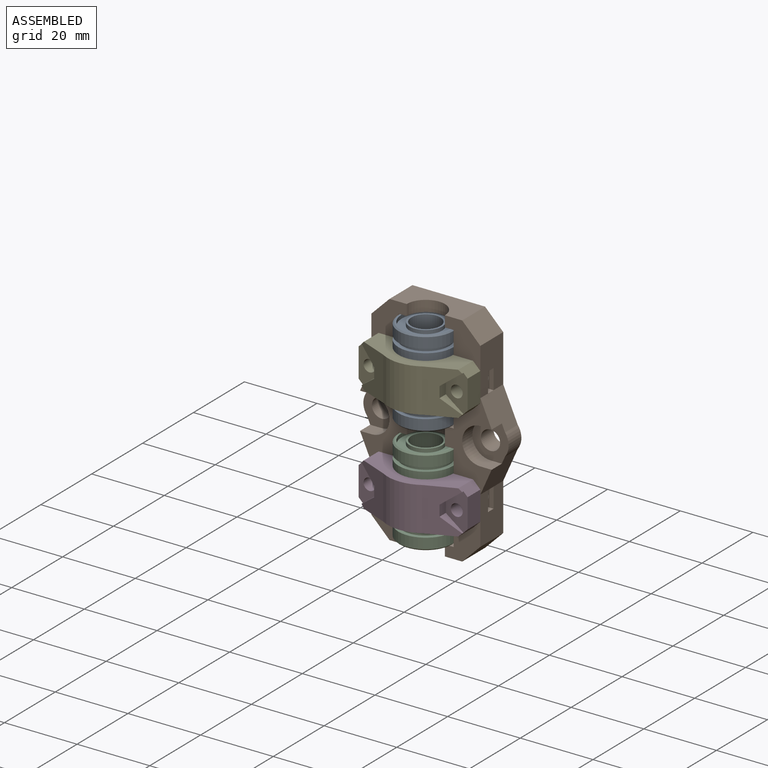
[diagram: assembled view]
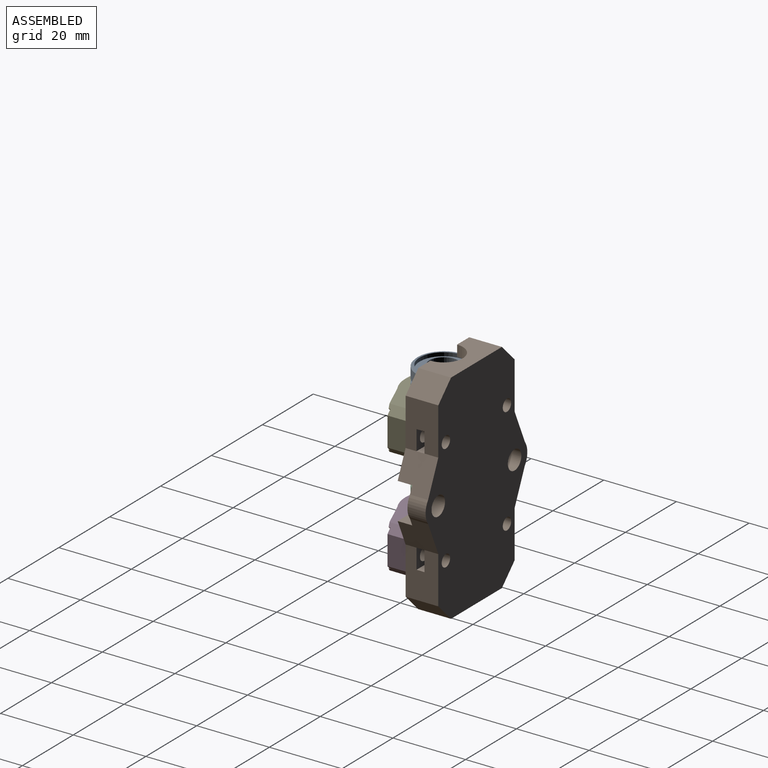
[diagram: assembled view, second angle]
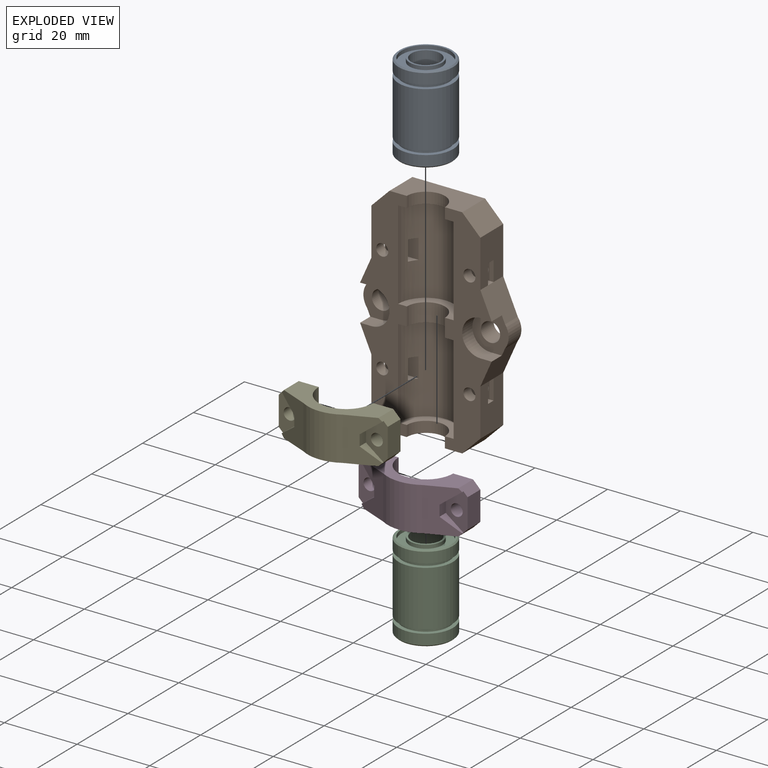
[diagram: exploded view]
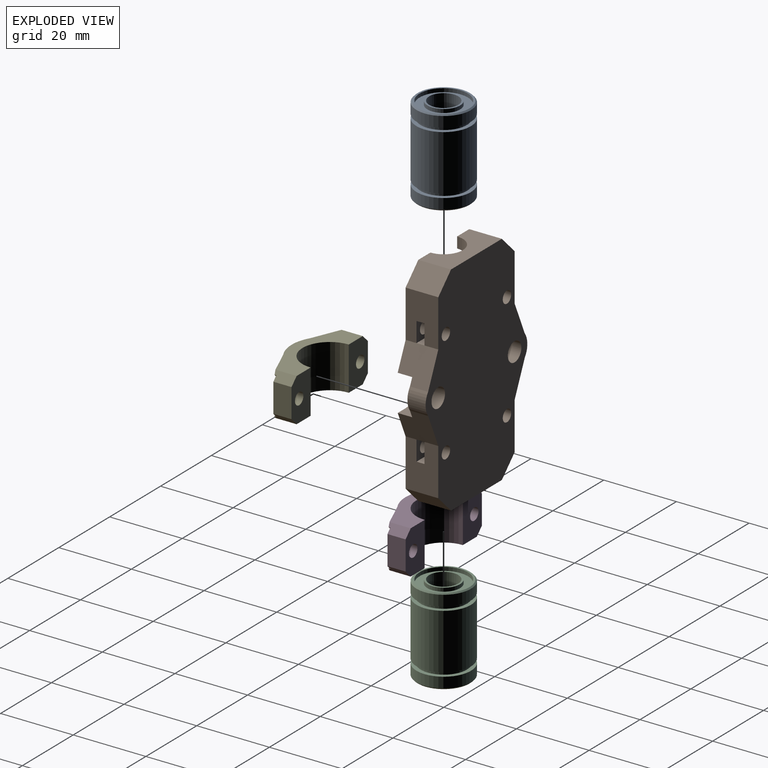
[diagram: exploded view, second angle]
ASSEMBLY  parts=5 mates=4
PART A: 22 faces, bbox 24x15x15 mm
  f0: cone r=7.5mm half-angle=45deg, axis (-1,0,0), area 22.8mm2, adj f1,f21
  f1: cylinder r=7.5mm len=15mm, axis (-1,0,0), area 136.7mm2, adj f0,f2
  f2: plane 15x15mm, normal (-1,0,0), area 48mm2, adj f1,f3
  f3: cylinder r=6.4mm len=12.8mm, axis (-1,0,0), area 44.2mm2, adj f2,f4
  f4: plane 15x15mm, normal (1,0,0), area 48mm2, adj f3,f5
  f5: cylinder r=7.5mm len=15.3mm, axis (-1,0,0), area 721mm2, adj f4,f6
  f6: plane 15x15mm, normal (-1,0,0), area 48mm2, adj f5,f7
  f7: cylinder r=6.4mm len=12.8mm, axis (-1,0,0), area 44.2mm2, adj f6,f8
  f8: plane 15x15mm, normal (1,0,0), area 48mm2, adj f7,f9
  f9: cylinder r=7.5mm len=15mm, axis (-1,0,0), area 136.7mm2, adj f8,f10
  f10: cone r=7.5mm half-angle=45deg, axis (1,0,0), area 22.8mm2, adj f9,f11
  f11: plane 14.3x14.3mm, normal (-1,0,0), area 21.7mm2, adj f10,f12
  f12: cylinder r=6.65mm len=13.3mm, axis (-1,0,0), area 41.8mm2, adj f11,f13
  f13: plane 13.3x13.3mm, normal (-1,0,0), area 75.3mm2, adj f12,f14
  f14: cylinder r=4.5mm len=9mm, axis (-1,0,0), area 28.3mm2, adj f13,f15
  f15: plane 9x9mm, normal (-1,0,0), area 13.4mm2, adj f14,f16
  f16: cylinder r=4mm len=24mm, axis (-1,0,0), area 603.2mm2, adj f15,f17
  f17: plane 9x9mm, normal (1,0,0), area 13.4mm2, adj f16,f18
  f18: cylinder r=4.5mm len=9mm, axis (-1,0,0), area 28.3mm2, adj f17,f19
  f19: plane 13.3x13.3mm, normal (1,0,0), area 75.3mm2, adj f18,f20
  f20: cylinder r=6.65mm len=13.3mm, axis (-1,0,0), area 41.8mm2, adj f19,f21
  f21: plane 14.3x14.3mm, normal (1,0,0), area 21.7mm2, adj f0,f20
PART B: 62 faces, bbox 40x9x60 mm
  f0: cylinder r=7.65mm len=24.5mm, axis (0,0,1), area 559.8mm2, adj f9,f18,f19,f38,f50,f51,f52,f53
  f1: cylinder r=1.65mm len=3.8mm, axis (0,-1,0), area 39.4mm2, adj f5,f59
  f2: cylinder r=1.65mm len=3.8mm, axis (0,-1,0), area 39.4mm2, adj f5,f55
  f3: cylinder r=1.65mm len=3.3mm, axis (0,-1,0), area 31.1mm2, adj f9,f51
  f4: cylinder r=1.65mm len=3.3mm, axis (0,-1,0), area 31.1mm2, adj f9,f47
  f5: plane 60x40mm, normal (0,1,0), area 1799.8mm2, adj f1,f2,f21,f22,f23,f24,f25,f26
  f6: cylinder r=5mm len=10mm, axis (0,-1,0), area 62.8mm2, adj f7,f8,f9,f10
  f7: plane 4x3.11mm, normal (0,0,-1), area 12.4mm2, adj f6,f9,f10,f21
  f8: plane 4x3.11mm, normal (0,0,1), area 12.4mm2, adj f6,f9,f10,f27
  f9: plane 60x12.86mm, normal (0,-1,0), area 407.8mm2, adj f0,f3,f4,f6,f7,f8,f13,f14
  f10: plane 10x10mm, normal (0,-1,0), area 59.5mm2, adj f6,f7,f8,f21,f27,f28,f32
  f11: cylinder r=5mm len=10mm, axis (0,-1,0), area 62.8mm2, adj f12,f36,f37,f38
  f12: plane 4x3.11mm, normal (0,0,1), area 12.4mm2, adj f11,f35,f36,f38
  f13: cylinder r=5.25mm len=10.5mm, axis (0,0,1), area 49.5mm2, adj f9,f14,f25,f38
  f14: plane 15.3x7.65mm, normal (0,0,1), area 48.6mm2, adj f9,f13,f15,f38
  f15: cylinder r=7.65mm len=24.5mm, axis (0,0,1), area 559.8mm2, adj f9,f14,f16,f38,f46,f47,f48,f49
  f16: plane 15.3x7.65mm, normal (0,0,-1), area 48.6mm2, adj f9,f15,f17,f38
  f17: cylinder r=5.25mm len=10.5mm, axis (0,0,1), area 82.5mm2, adj f9,f16,f18,f38
  f18: plane 15.3x7.65mm, normal (0,0,1), area 48.6mm2, adj f0,f9,f17,f38
  f19: plane 15.3x7.65mm, normal (0,0,-1), area 48.6mm2, adj f0,f9,f20,f38
  f20: cylinder r=5.25mm len=10.5mm, axis (0,0,1), area 49.5mm2, adj f9,f19,f23,f38
  f21: plane 9x9mm, normal (0.91,0,0.41), area 79.9mm2, adj f5,f7,f9,f10,f22,f28,f52
  f22: plane 13x9mm, normal (1,0,0), area 104.9mm2, adj f5,f9,f21,f44,f50,f51,f53
  f23: plane 20x9mm, normal (0,0,1), area 136.7mm2, adj f5,f9,f20,f38,f44,f45
  f24: plane 13x9mm, normal (-1,0,0), area 104.9mm2, adj f5,f35,f38,f43,f58,f59,f60
  f25: plane 20x9mm, normal (0,0,-1), area 136.7mm2, adj f5,f9,f13,f38,f42,f43
  f26: plane 13x9mm, normal (1,0,0), area 104.9mm2, adj f5,f9,f27,f42,f46,f47,f48
  f27: plane 9x9mm, normal (0.91,0,-0.41), area 79.9mm2, adj f5,f8,f9,f10,f26,f28,f49
  f28: cylinder r=5mm len=6mm, axis (0,-1,0), area 32.2mm2, adj f5,f10,f21,f27
  f29: cylinder r=1.65mm len=3.8mm, axis (0,-1,0), area 39.4mm2, adj f5,f50
  f30: cylinder r=1.65mm len=3.8mm, axis (0,-1,0), area 39.4mm2, adj f5,f46
  f31: cylinder r=1.65mm len=3.3mm, axis (0,-1,0), area 31.1mm2, adj f38,f58
  f32: cylinder r=2.65mm len=5.3mm, axis (0,-1,0), area 83.3mm2, adj f5,f10
  f33: cylinder r=1.65mm len=3.3mm, axis (0,-1,0), area 31.1mm2, adj f38,f56
  f34: cylinder r=2.65mm len=5.3mm, axis (0,-1,0), area 83.3mm2, adj f5,f36
  f35: plane 9x9mm, normal (-0.91,0,-0.41), area 79.9mm2, adj f5,f12,f24,f36,f38,f40,f61
  f36: plane 10x10mm, normal (0,-1,0), area 59.5mm2, adj f11,f12,f34,f35,f37,f40,f41
  f37: plane 4x3.11mm, normal (0,0,-1), area 12.4mm2, adj f11,f36,f38,f41
  f38: plane 60x12.86mm, normal (0,-1,0), area 407.8mm2, adj f0,f11,f12,f13,f14,f15,f16,f17
  f39: plane 13x9mm, normal (-1,0,0), area 104.9mm2, adj f5,f38,f41,f45,f54,f55,f56
  f40: cylinder r=5mm len=6mm, axis (0,-1,0), area 32.2mm2, adj f5,f35,f36,f41
  f41: plane 9x9mm, normal (-0.91,0,0.41), area 79.9mm2, adj f5,f36,f37,f38,f39,f40,f57
  f42: plane 9x5mm, normal (0.71,0,-0.71), area 63.6mm2, adj f5,f9,f25,f26
  f43: plane 9x5mm, normal (-0.71,0,-0.71), area 63.6mm2, adj f5,f24,f25,f38
  f44: plane 9x5mm, normal (0.71,0,0.71), area 63.6mm2, adj f5,f9,f22,f23
  f45: plane 9x5mm, normal (-0.71,0,0.71), area 63.6mm2, adj f5,f23,f38,f39
  f46: plane 9.39x5.5mm, normal (0,-1,0), area 43.1mm2, adj f15,f26,f30,f48,f49
  f47: plane 7.96x5.5mm, normal (0,1,0), area 35.2mm2, adj f4,f15,f26,f48,f49
  f48: plane 9.39x2.2mm, normal (0,0,1), area 18.9mm2, adj f15,f26,f46,f47
  f49: plane 9.39x2.2mm, normal (0,0,-1), area 18.9mm2, adj f15,f27,f46,f47
  f50: plane 9.39x5.5mm, normal (0,-1,0), area 43.1mm2, adj f0,f22,f29,f52,f53
  f51: plane 7.96x5.5mm, normal (0,1,0), area 35.2mm2, adj f0,f3,f22,f52,f53
  f52: plane 9.39x2.2mm, normal (0,0,1), area 18.9mm2, adj f0,f21,f50,f51
  f53: plane 9.39x2.2mm, normal (0,0,-1), area 18.9mm2, adj f0,f22,f50,f51
  f54: plane 9.39x2.2mm, normal (0,0,-1), area 18.9mm2, adj f0,f39,f55,f56
  f55: plane 9.39x5.5mm, normal (0,-1,0), area 43.1mm2, adj f0,f2,f39,f54,f57
  f56: plane 7.96x5.5mm, normal (0,1,0), area 35.2mm2, adj f0,f33,f39,f54,f57
  f57: plane 9.39x2.2mm, normal (0,0,1), area 18.9mm2, adj f0,f41,f55,f56
  f58: plane 7.96x5.5mm, normal (0,1,0), area 35.2mm2, adj f15,f24,f31,f60,f61
  f59: plane 9.39x5.5mm, normal (0,-1,0), area 43.1mm2, adj f1,f15,f24,f60,f61
  f60: plane 9.39x2.2mm, normal (0,0,1), area 18.9mm2, adj f15,f24,f58,f59
  f61: plane 9.39x2.2mm, normal (0,0,-1), area 18.9mm2, adj f15,f35,f58,f59
PART C: same geometry as A
PART D: 24 faces, bbox 30x10.5x12 mm
  f0: plane 4.86x3.64mm, normal (-0.6,0,0.8), area 9mm2, adj f2,f3,f7,f22
  f1: plane 4.86x3.64mm, normal (-0.6,0,-0.8), area 9mm2, adj f2,f3,f7,f23
  f2: plane 3x2.5mm, normal (-1,0,0), area 7.5mm2, adj f0,f1,f3,f7
  f3: plane 10.29x6mm, normal (0,-1,0), area 34.2mm2, adj f0,f1,f2,f4,f8,f22,f23
  f4: cylinder r=1.65mm len=5mm, axis (0,-1,0), area 51.8mm2, adj f3,f9
  f5: cylinder r=7.5mm len=15mm, axis (0,0,-1), area 282.7mm2, adj f6,f9,f13,f15
  f6: plane 12x7.5mm, normal (0,1,0), area 77.4mm2, adj f5,f10,f11,f13,f15,f20,f21
  f7: plane 12x8.45mm, normal (-0.38,-0.92,0), area 74.1mm2, adj f0,f1,f2,f13,f14,f15,f22,f23
  f8: plane 8x5mm, normal (-1,0,0), area 40mm2, adj f3,f9,f22,f23
  f9: plane 12x7.5mm, normal (0,1,0), area 77.4mm2, adj f4,f5,f8,f13,f15,f22,f23
  f10: cylinder r=1.65mm len=5mm, axis (0,-1,0), area 51.8mm2, adj f6,f16
  f11: plane 8x5mm, normal (1,0,0), area 40mm2, adj f6,f16,f20,f21
  f12: plane 4.86x3.64mm, normal (0.6,0,0.8), area 9mm2, adj f16,f17,f18,f21
  f13: plane 26x10.5mm, normal (0,0,1), area 132.6mm2, adj f5,f6,f7,f9,f14,f18,f20,f23
  f14: cylinder r=10.5mm len=12mm, axis (0,0,-1), area 136.4mm2, adj f7,f13,f15,f18
  f15: plane 26x10.5mm, normal (0,0,-1), area 132.6mm2, adj f5,f6,f7,f9,f14,f18,f21,f22
  f16: plane 10.29x6mm, normal (0,-1,0), area 34.2mm2, adj f10,f11,f12,f17,f19,f20,f21
  f17: plane 3x2.5mm, normal (1,0,0), area 7.5mm2, adj f12,f16,f18,f19
  f18: plane 12x8.45mm, normal (0.38,-0.92,0), area 74.1mm2, adj f12,f13,f14,f15,f17,f19,f20,f21
  f19: plane 4.86x3.64mm, normal (0.6,0,-0.8), area 9mm2, adj f16,f17,f18,f20
  f20: plane 5.83x2mm, normal (0.71,0,0.71), area 14.9mm2, adj f6,f11,f13,f16,f18,f19
  f21: plane 5.83x2mm, normal (0.71,0,-0.71), area 14.9mm2, adj f6,f11,f12,f15,f16,f18
  f22: plane 5.83x2mm, normal (-0.71,0,-0.71), area 14.9mm2, adj f0,f3,f7,f8,f9,f15
  f23: plane 5.83x2mm, normal (-0.71,0,0.71), area 14.9mm2, adj f1,f3,f7,f8,f9,f13
PART E: 24 faces, bbox 30x10.5x12 mm
  f0: plane 4.86x3.64mm, normal (-0.6,0,0.8), area 9mm2, adj f2,f3,f7,f23
  f1: plane 4.86x3.64mm, normal (-0.6,0,-0.8), area 9mm2, adj f2,f3,f7,f21
  f2: plane 3x2.5mm, normal (-1,0,0), area 7.5mm2, adj f0,f1,f3,f7
  f3: plane 10.29x6mm, normal (0,-1,0), area 34.2mm2, adj f0,f1,f2,f4,f8,f21,f23
  f4: cylinder r=1.65mm len=5mm, axis (0,-1,0), area 51.8mm2, adj f3,f9
  f5: cylinder r=7.5mm len=15mm, axis (0,0,-1), area 282.7mm2, adj f6,f9,f13,f15
  f6: plane 12x7.5mm, normal (0,1,0), area 77.4mm2, adj f5,f10,f11,f13,f15,f20,f22
  f7: plane 12x8.45mm, normal (-0.38,-0.92,0), area 74.1mm2, adj f0,f1,f2,f13,f14,f15,f21,f23
  f8: plane 8x5mm, normal (-1,0,0), area 40mm2, adj f3,f9,f21,f23
  f9: plane 12x7.5mm, normal (0,1,0), area 77.4mm2, adj f4,f5,f8,f13,f15,f21,f23
  f10: cylinder r=1.65mm len=5mm, axis (0,-1,0), area 51.8mm2, adj f6,f16
  f11: plane 8x5mm, normal (1,0,0), area 40mm2, adj f6,f16,f20,f22
  f12: plane 4.86x3.64mm, normal (0.6,0,0.8), area 9mm2, adj f16,f17,f18,f20
  f13: plane 26x10.5mm, normal (0,0,1), area 132.6mm2, adj f5,f6,f7,f9,f14,f18,f21,f22
  f14: cylinder r=10.5mm len=12mm, axis (0,0,-1), area 136.4mm2, adj f7,f13,f15,f18
  f15: plane 26x10.5mm, normal (0,0,-1), area 132.6mm2, adj f5,f6,f7,f9,f14,f18,f20,f23
  f16: plane 10.29x6mm, normal (0,-1,0), area 34.2mm2, adj f10,f11,f12,f17,f19,f20,f22
  f17: plane 3x2.5mm, normal (1,0,0), area 7.5mm2, adj f12,f16,f18,f19
  f18: plane 12x8.45mm, normal (0.38,-0.92,0), area 74.1mm2, adj f12,f13,f14,f15,f17,f19,f20,f22
  f19: plane 4.86x3.64mm, normal (0.6,0,-0.8), area 9mm2, adj f16,f17,f18,f22
  f20: plane 5.83x2mm, normal (0.71,0,-0.71), area 14.9mm2, adj f6,f11,f12,f15,f16,f18
  f21: plane 5.83x2mm, normal (-0.71,0,0.71), area 14.9mm2, adj f1,f3,f7,f8,f9,f13
  f22: plane 5.83x2mm, normal (0.71,0,0.71), area 14.9mm2, adj f6,f11,f13,f16,f18,f19
  f23: plane 5.83x2mm, normal (-0.71,0,-0.71), area 14.9mm2, adj f0,f3,f7,f8,f9,f15
PLACE A rot(axis=(0,-1,0),90deg) t=(0,0,45)mm
PLACE B t=(0,9,30)mm
PLACE C rot(axis=(0,1,0),90deg) t=(0,0,15.5)mm
PLACE D t=(0,9,30)mm
PLACE E t=(0,9,30)mm
MATE fastened A.f0 <-> B.f0  axis (0,0,1) through (0,0,57)mm
MATE fastened C.f0 <-> B.f0  axis (0,0,1) through (0,0,27.5)mm
MATE fastened E.f4 <-> B.f2  axis (0,1,0) through (-12,0,44.75)mm
MATE fastened D.f4 <-> B.f1  axis (0,1,0) through (-12,0,15.25)mm
